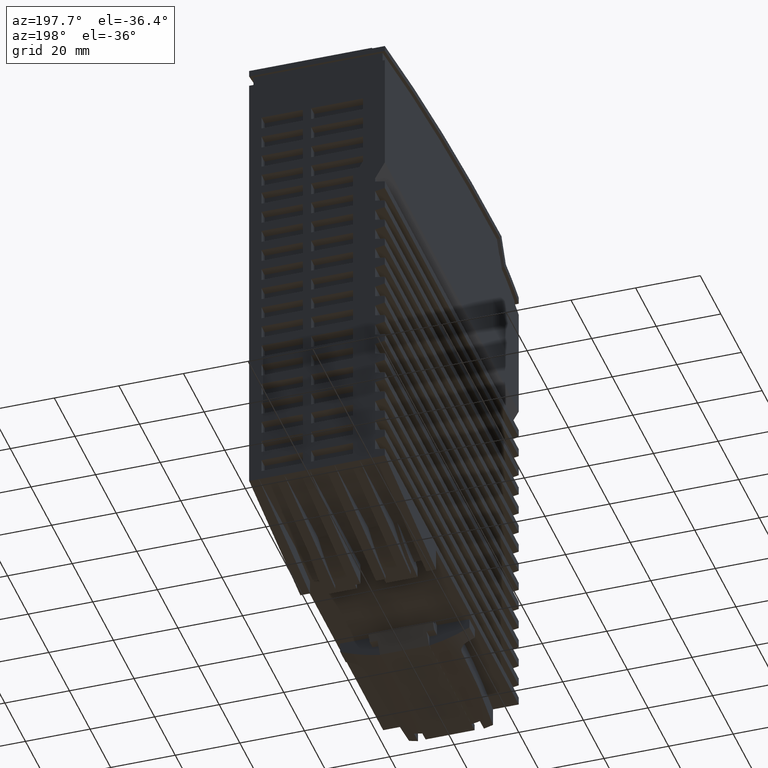
[diagram: clean part render]
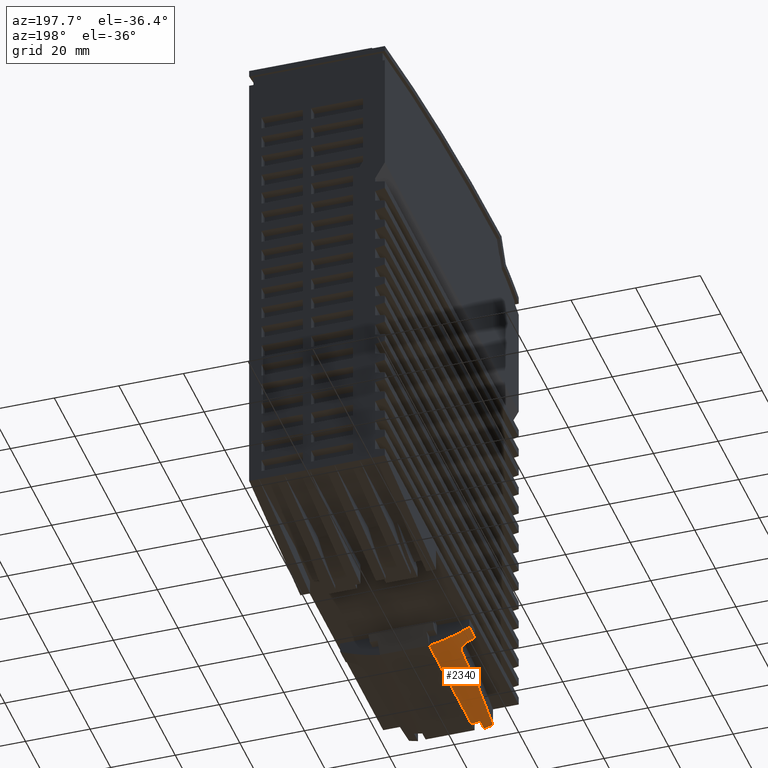
[diagram: same view with one face highlighted and labeled with its STEP entity id]
A machine part, auxiliary view. The second image highlights one B-rep face of the part: STEP entity #2340.
In plain terms, the highlighted cylindrical surface (partial cylindrical patch) has radius 46.1 mm, axis along (0, -1, 0).
Its self-contained STEP definition (entity closure, byte-faithful):
#1000=CARTESIAN_POINT('',(-6.93922035839191,44.85,-21.9));
#1010=VERTEX_POINT('',#1000);
#1040=CARTESIAN_POINT('',(-6.93922035839191,0.,-21.9));
#1050=DIRECTION('',(0.,-1.,0.));
#1060=VECTOR('',#1050,1.);
#1070=LINE('',#1040,#1060);
#1080=CARTESIAN_POINT('',(-6.93922035839191,3.9,-21.9));
#1090=VERTEX_POINT('',#1080);
#1100=EDGE_CURVE('',#1010,#1090,#1070,.T.);
#1280=CARTESIAN_POINT('',(38.53,0.,-29.5));
#1290=DIRECTION('',(0.,-1.,0.));
#1300=DIRECTION('',(0.,0.,1.));
#1310=AXIS2_PLACEMENT_3D('',#1280,#1290,#1300);
#1320=CYLINDRICAL_SURFACE('',#1310,46.1);
#1330=CARTESIAN_POINT('',(-3.00564734056761,0.,-9.49999999999999));
#1340=DIRECTION('',(0.,-1.,0.));
#1350=VECTOR('',#1340,1.);
#1360=LINE('',#1330,#1350);
#1370=CARTESIAN_POINT('',(-3.00564734056761,44.85,-9.49999999999999));
#1380=VERTEX_POINT('',#1370);
#1390=CARTESIAN_POINT('',(-3.00564734056761,39.5,-9.49999999999999));
#1400=VERTEX_POINT('',#1390);
#1410=EDGE_CURVE('',#1380,#1400,#1360,.T.);
#1420=ORIENTED_EDGE('',*,*,#1410,.F.);
#1430=CARTESIAN_POINT('',(38.53,39.5,-29.5));
#1440=DIRECTION('',(0.,-1.,0.));
#1450=DIRECTION('',(0.,0.,1.));
#1460=AXIS2_PLACEMENT_3D('',#1430,#1440,#1450);
#1470=CIRCLE('',#1460,46.1);
#1480=CARTESIAN_POINT('',(-3.92084389430599,39.5,-11.52402011958));
#1490=VERTEX_POINT('',#1480);
#1500=EDGE_CURVE('',#1400,#1490,#1470,.T.);
#1510=ORIENTED_EDGE('',*,*,#1500,.F.);
#1520=CARTESIAN_POINT('',(0.,36.5,-11.52402011958));
#1530=DIRECTION('',(1.,0.,0.));
#1540=DIRECTION('',(0.,0.0114810397225803,-0.999934090691426));
#1550=AXIS2_PLACEMENT_3D('',#1520,#1530,#1540);
#1560=CYLINDRICAL_SURFACE('',#1550,3.);
#1570=CARTESIAN_POINT('',(-5.06958834947049,36.53444311917,
-14.5238223916542));
#1580=CARTESIAN_POINT('',(-5.06799311851421,36.9389213299484,
-14.5191782551572));
#1590=CARTESIAN_POINT('',(-5.03830791111062,37.3402235465304,
-14.4320789708023));
#1600=CARTESIAN_POINT('',(-4.98137258827184,37.7094458940826,
-14.2694236653796));
#1610=CARTESIAN_POINT('',(-4.92495847087104,38.0752882538562,
-14.1082573623104));
#1620=CARTESIAN_POINT('',(-4.84229809769544,38.4047650468939,
-13.8748298678172));
#1630=CARTESIAN_POINT('',(-4.7375127612798,38.6753798804502,
-13.5898667682307));
#1640=CARTESIAN_POINT('',(-4.63364181143594,38.943633252199,
-13.3073903374915));
#1650=CARTESIAN_POINT('',(-4.5083820516217,39.1529867981786,
-12.9756728480816));
#1660=CARTESIAN_POINT('',(-4.36861150818172,39.2924606498774,
-12.6204522966372));
#1670=CARTESIAN_POINT('',(-4.22968626592224,39.4310909947213,
-12.2673800401347));
#1680=CARTESIAN_POINT('',(-4.07770116126338,39.5000000000014,
-11.8944435066228));
#1690=CARTESIAN_POINT('',(-3.92084389431752,39.5000000000002,
-11.5240201195751));
#1700=B_SPLINE_CURVE_WITH_KNOTS('',3,(#1570,#1580,#1590,#1600,#1610,
#1620,#1630,#1640,#1650,#1660,#1670,#1680,#1690),.UNSPECIFIED.,.F.,.F.,(
4,3,3,3,4),(0.,1.21456034792093,2.42883284197096,3.64296848960511,
4.85155629033697),.UNSPECIFIED.);
#1710=SURFACE_CURVE('',#1700,(#1560,#1320),.CURVE_3D.);
#1720=CARTESIAN_POINT('',(-5.06958834950933,36.5344431191703,
-14.5238223916637));
#1730=VERTEX_POINT('',#1720);
#1740=EDGE_CURVE('',#1730,#1490,#1710,.T.);
#1750=ORIENTED_EDGE('',*,*,#1740,.T.);
#1760=CARTESIAN_POINT('',(0.,41.47129019691,-444.495481389));
#1770=DIRECTION('',(-1.,0.,0.));
#1780=DIRECTION('',(0.,-0.0952820702253681,0.99545031372418));
#1790=AXIS2_PLACEMENT_3D('',#1760,#1770,#1780);
#1800=CYLINDRICAL_SURFACE('',#1790,430.);
#1810=CARTESIAN_POINT('',(-5.06958834947785,36.5344431191701,
-14.523822391655));
#1820=CARTESIAN_POINT('',(-5.08161495132548,33.4850424156857,
-14.5588349898968));
#1830=CARTESIAN_POINT('',(-5.10477828774327,30.4359726375659,
-14.6262902708517));
#1840=CARTESIAN_POINT('',(-5.13856861772166,27.3880666899406,
-14.7261679013421));
#1850=CARTESIAN_POINT('',(-5.17235732851858,24.340306793355,
-14.8260407458476));
#1860=CARTESIAN_POINT('',(-5.21677254022735,21.2934515863635,
-14.9583373539935));
#1870=CARTESIAN_POINT('',(-5.2708431375056,18.2477759345531,
-15.1230691577225));
#1880=CARTESIAN_POINT('',(-5.32491260524339,15.2021639072263,
-15.2877975201869));
#1890=CARTESIAN_POINT('',(-5.38863195196613,12.1580082008686,
-15.4849502885069));
#1900=CARTESIAN_POINT('',(-5.46055662319525,9.11636083191842,
-15.7144667139256));
#1910=CARTESIAN_POINT('',(-5.53248128974276,6.07471366095047,
-15.9439831244049));
#1920=CARTESIAN_POINT('',(-5.61260873870129,3.03557969791839,
-16.2058627671489));
#1930=CARTESIAN_POINT('',(-5.69906284333233,2.00291165153543E-10,
-16.4999999999784));
#1940=B_SPLINE_CURVE_WITH_KNOTS('',3,(#1810,#1820,#1830,#1840,#1850,
#1860,#1870,#1880,#1890,#1900,#1910,#1920,#1930),.UNSPECIFIED.,.F.,.F.,(
4,3,3,3,4),(0.,9.1490664223015,18.2991160483553,27.4518141755408,
36.6052452592268),.UNSPECIFIED.);
#1950=SURFACE_CURVE('',#1940,(#1800,#1320),.CURVE_3D.);
#1960=CARTESIAN_POINT('',(-5.69906284337091,2.8421709430404E-14,
-16.4999999999978));
#1970=VERTEX_POINT('',#1960);
#1980=EDGE_CURVE('',#1730,#1970,#1950,.T.);
#1990=ORIENTED_EDGE('',*,*,#1980,.F.);
#2000=CARTESIAN_POINT('',(38.53,0.,-29.5));
#2010=DIRECTION('',(0.,-1.,0.));
#2020=DIRECTION('',(0.,0.,1.));
#2030=AXIS2_PLACEMENT_3D('',#2000,#2010,#2020);
#2040=CIRCLE('',#2030,46.1);
#2050=CARTESIAN_POINT('',(-6.42742430344515,0.,-19.3));
#2060=VERTEX_POINT('',#2050);
#2070=EDGE_CURVE('',#1970,#2060,#2040,.T.);
#2080=ORIENTED_EDGE('',*,*,#2070,.F.);
#2090=CARTESIAN_POINT('',(-6.42742430344515,0.,-19.3));
#2100=DIRECTION('',(0.,-1.,0.));
#2110=VECTOR('',#2100,1.);
#2120=LINE('',#2090,#2110);
#2130=CARTESIAN_POINT('',(-6.42742430344515,3.9,-19.3));
#2140=VERTEX_POINT('',#2130);
#2150=EDGE_CURVE('',#2140,#2060,#2120,.T.);
#2160=ORIENTED_EDGE('',*,*,#2150,.T.);
#2170=CARTESIAN_POINT('',(38.53,3.9,-29.5));
#2180=DIRECTION('',(0.,-1.,0.));
#2190=DIRECTION('',(0.,0.,1.));
#2200=AXIS2_PLACEMENT_3D('',#2170,#2180,#2190);
#2210=CIRCLE('',#2200,46.1);
#2220=EDGE_CURVE('',#2140,#1090,#2210,.T.);
#2230=ORIENTED_EDGE('',*,*,#2220,.F.);
#2240=ORIENTED_EDGE('',*,*,#1100,.T.);
#2250=CARTESIAN_POINT('',(38.53,44.85,-29.5));
#2260=DIRECTION('',(0.,-1.,0.));
#2270=DIRECTION('',(0.,0.,1.));
#2280=AXIS2_PLACEMENT_3D('',#2250,#2260,#2270);
#2290=CIRCLE('',#2280,46.1);
#2300=EDGE_CURVE('',#1380,#1010,#2290,.T.);
#2310=ORIENTED_EDGE('',*,*,#2300,.T.);
#2320=EDGE_LOOP('',(#2310,#2240,#2230,#2160,#2080,#1990,#1750,#1510,
#1420));
#2330=FACE_OUTER_BOUND('',#2320,.T.);
#2340=ADVANCED_FACE('',(#2330),#1320,.T.);